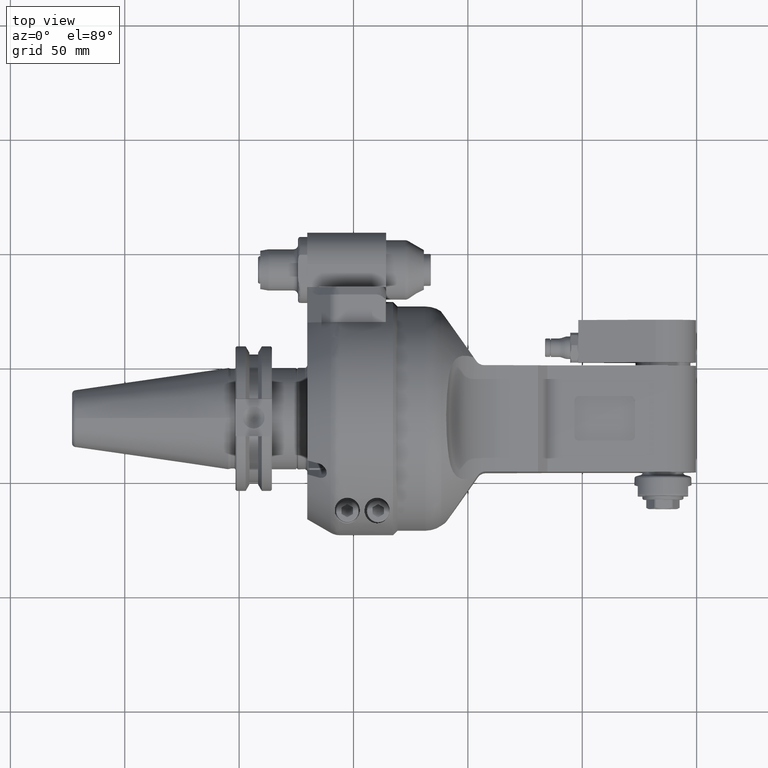
[diagram: clean part render]
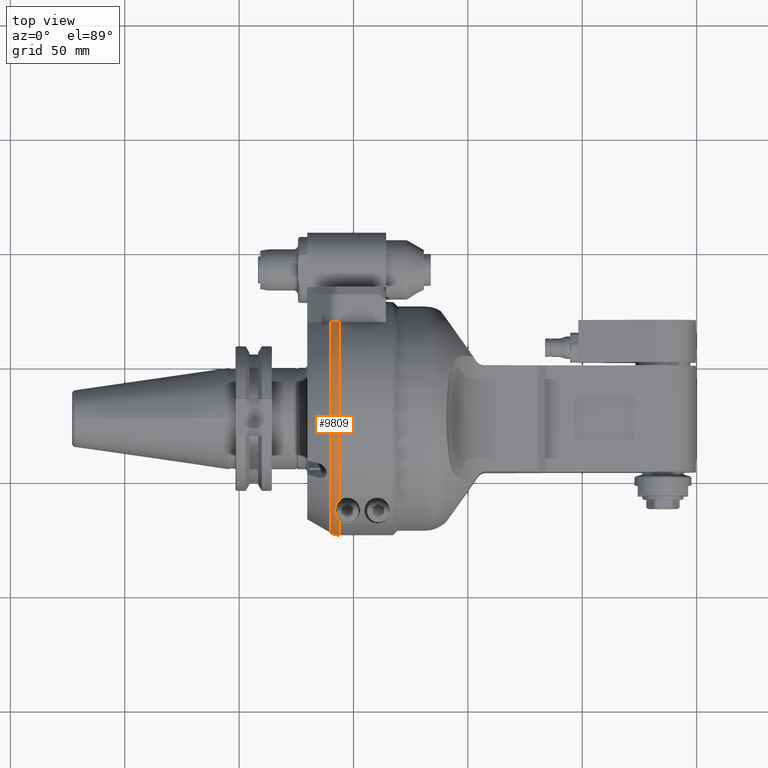
[diagram: same view with one face highlighted and labeled with its STEP entity id]
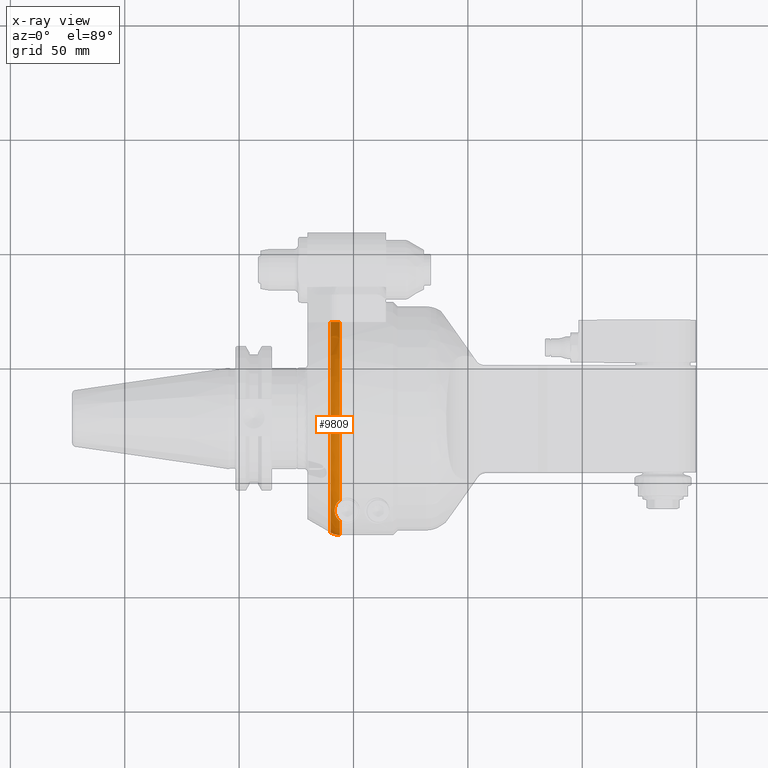
[diagram: x-ray of the same camera — body ghosted, the highlighted face saturated]
A machine part, top view. The second image highlights one B-rep face of the part: STEP entity #9809.
The next image is the same camera in x-ray: the body ghosted, the highlighted face saturated — about 0% of this face is hidden behind the body in this view.
In plain terms, the highlighted toroidal blend (fillet) surface has major radius 43 mm and minor (blend) radius 8 mm.
Its self-contained STEP definition (entity closure, byte-faithful):
#157=TOROIDAL_SURFACE('',#10634,43.,8.);
#314=B_SPLINE_CURVE_WITH_KNOTS('',3,(#15743,#15744,#15745,#15746,#15747,
#15748,#15749,#15750,#15751,#15752),.UNSPECIFIED.,.F.,.F.,(4,2,2,2,4),(-9.68559804021147,
-9.63577634006454,-9.4843525606202,-9.37005770955715,-9.2557628584941),
 .UNSPECIFIED.);
#329=B_SPLINE_CURVE_WITH_KNOTS('',3,(#16062,#16063,#16064,#16065,#16066,
#16067,#16068,#16069),.UNSPECIFIED.,.F.,.F.,(4,2,2,4),(4.34441023881693,
4.44441523838835,4.59248867498487,4.74056211158139),.UNSPECIFIED.);
#332=B_SPLINE_CURVE_WITH_KNOTS('',3,(#16101,#16102,#16103,#16104,#16105,
#16106,#16107,#16108,#16109,#16110,#16111,#16112,#16113,#16114,#16115,#16116),
 .UNSPECIFIED.,.F.,.F.,(4,3,3,3,3,4),(-9.34472443709596,-9.15576581563747,
-8.53592281537668,-8.19749167718073,-7.91960616501336,-7.85473194545352),
 .UNSPECIFIED.);
#846=CIRCLE('',#10588,51.);
#847=CIRCLE('',#10589,51.);
#868=CIRCLE('',#10631,49.92820323028);
#1330=FACE_OUTER_BOUND('',#1921,.T.);
#1921=EDGE_LOOP('',(#7977,#7978,#7979,#7980,#7981,#7982));
#4423=VERTEX_POINT('',#15708);
#4433=VERTEX_POINT('',#15739);
#4438=VERTEX_POINT('',#15763);
#4440=VERTEX_POINT('',#15772);
#4441=VERTEX_POINT('',#15799);
#4481=VERTEX_POINT('',#16050);
#5645=EDGE_CURVE('',#4433,#4423,#314,.T.);
#5651=EDGE_CURVE('',#4438,#4423,#846,.T.);
#5654=EDGE_CURVE('',#4441,#4440,#847,.T.);
#5717=EDGE_CURVE('',#4481,#4441,#329,.T.);
#5720=EDGE_CURVE('',#4433,#4481,#868,.T.);
#5725=EDGE_CURVE('',#4440,#4438,#332,.T.);
#7977=ORIENTED_EDGE('',*,*,#5720,.T.);
#7978=ORIENTED_EDGE('',*,*,#5717,.T.);
#7979=ORIENTED_EDGE('',*,*,#5654,.T.);
#7980=ORIENTED_EDGE('',*,*,#5725,.T.);
#7981=ORIENTED_EDGE('',*,*,#5651,.T.);
#7982=ORIENTED_EDGE('',*,*,#5645,.F.);
#9809=ADVANCED_FACE('',(#1330),#157,.T.);
#10588=AXIS2_PLACEMENT_3D('',#15764,#12480,#12481);
#10589=AXIS2_PLACEMENT_3D('',#15800,#12482,#12483);
#10631=AXIS2_PLACEMENT_3D('',#16075,#12596,#12597);
#10634=AXIS2_PLACEMENT_3D('',#16100,#12602,#12603);
#12480=DIRECTION('center_axis',(-1.,0.,0.));
#12481=DIRECTION('ref_axis',(0.,-0.711205879844998,0.702983781088798));
#12482=DIRECTION('center_axis',(-1.,0.,0.));
#12483=DIRECTION('ref_axis',(0.,-0.999567380468613,0.0294117647058804));
#12596=DIRECTION('center_axis',(1.,0.,0.));
#12597=DIRECTION('ref_axis',(0.,0.836200730225418,0.548423503116412));
#12602=DIRECTION('center_axis',(1.,0.,0.));
#12603=DIRECTION('ref_axis',(0.,-1.,0.));
#15708=CARTESIAN_POINT('',(-37.23205080757,41.75,29.29057015492));
#15739=CARTESIAN_POINT('',(-41.23205080757,41.75,27.38180011986));
#15743=CARTESIAN_POINT('Ctrl Pts',(-41.2320508075675,41.75,27.3818001198576));
#15744=CARTESIAN_POINT('Ctrl Pts',(-41.1084978721799,41.75,27.5118698927609));
#15745=CARTESIAN_POINT('Ctrl Pts',(-40.9796012581369,41.75,27.63883358715));
#15746=CARTESIAN_POINT('Ctrl Pts',(-40.4412749376929,41.75,28.1311886381695));
#15747=CARTESIAN_POINT('Ctrl Pts',(-39.9932266664163,41.75,28.4521983127449));
#15748=CARTESIAN_POINT('Ctrl Pts',(-39.2119237728328,41.75,28.8694287521605));
#15749=CARTESIAN_POINT('Ctrl Pts',(-38.8258618631201,41.75,29.0288082766981));
#15750=CARTESIAN_POINT('Ctrl Pts',(-38.0264941442551,41.75,29.2396724058848));
#15751=CARTESIAN_POINT('Ctrl Pts',(-37.6130336444468,41.75,29.290570154915));
#15752=CARTESIAN_POINT('Ctrl Pts',(-37.23205080757,41.75,29.290570154915));
#15763=CARTESIAN_POINT('',(-37.23205080757,-36.27149987209,35.85217283553));
#15764=CARTESIAN_POINT('Origin',(-37.23205080757,0.,0.));
#15772=CARTESIAN_POINT('',(-37.23205080757,-45.1718026933,23.67505525733));
#15799=CARTESIAN_POINT('',(-37.2320508231036,-50.9779364044793,1.499999980309));
#15800=CARTESIAN_POINT('Origin',(-37.23205080757,0.,0.));
#16050=CARTESIAN_POINT('',(-41.2320587089715,-49.9056612221311,1.50000006858959));
#16062=CARTESIAN_POINT('Ctrl Pts',(-41.2320587100669,-49.9056612240274,
1.5));
#16063=CARTESIAN_POINT('Ctrl Pts',(-40.9199628642827,-50.0859316928166,
1.5));
#16064=CARTESIAN_POINT('Ctrl Pts',(-40.6009646113261,-50.2413262775005,
1.5));
#16065=CARTESIAN_POINT('Ctrl Pts',(-39.8370100654999,-50.5578441661684,
1.5));
#16066=CARTESIAN_POINT('Ctrl Pts',(-39.3203684112507,-50.7191785472564,
1.5));
#16067=CARTESIAN_POINT('Ctrl Pts',(-38.2646778846743,-50.9292248693063,
1.5));
#16068=CARTESIAN_POINT('Ctrl Pts',(-37.7256289314938,-50.9779364038993,
1.5));
#16069=CARTESIAN_POINT('Ctrl Pts',(-37.23205080757,-50.9779364038993,1.5));
#16075=CARTESIAN_POINT('Origin',(-41.23205080757,0.,0.));
#16100=CARTESIAN_POINT('Origin',(-37.23205080757,0.,0.));
#16101=CARTESIAN_POINT('Ctrl Pts',(-37.2320508075727,-45.1718026933004,
23.6750552573282));
#16102=CARTESIAN_POINT('Ctrl Pts',(-37.6059523067415,-44.9002459459361,
24.1931832058645));
#16103=CARTESIAN_POINT('Ctrl Pts',(-37.9420066961396,-44.583821938807,24.718802925503));
#16104=CARTESIAN_POINT('Ctrl Pts',(-38.2317635357579,-44.2347948006096,
25.2564932996317));
#16105=CARTESIAN_POINT('Ctrl Pts',(-39.1822560162215,-43.0898773216244,
27.0202848225526));
#16106=CARTESIAN_POINT('Ctrl Pts',(-39.5913735244697,-41.6682943531802,
28.8794189915673));
#16107=CARTESIAN_POINT('Ctrl Pts',(-39.4830876369283,-40.2906640836273,
30.7375607372434));
#16108=CARTESIAN_POINT('Ctrl Pts',(-39.4239640908758,-39.5384849351303,
31.7520967175706));
#16109=CARTESIAN_POINT('Ctrl Pts',(-39.2001167152273,-38.7666121290655,
32.7926546956175));
#16110=CARTESIAN_POINT('Ctrl Pts',(-38.8239051275744,-38.0796938038292,
33.6844936512119));
#16111=CARTESIAN_POINT('Ctrl Pts',(-38.5149981213353,-37.5156657665659,
34.4167818391937));
#16112=CARTESIAN_POINT('Ctrl Pts',(-38.1276341386855,-37.0238735561015,
35.0318289883221));
#16113=CARTESIAN_POINT('Ctrl Pts',(-37.6160859153108,-36.5775081079181,
35.5266834858267));
#16114=CARTESIAN_POINT('Ctrl Pts',(-37.4966615829668,-36.4733011276279,
35.6422105569248));
#16115=CARTESIAN_POINT('Ctrl Pts',(-37.368565930287,-36.3706479171666,35.751865154858));
#16116=CARTESIAN_POINT('Ctrl Pts',(-37.2320508075659,-36.2714998720946,
35.8521728355289));